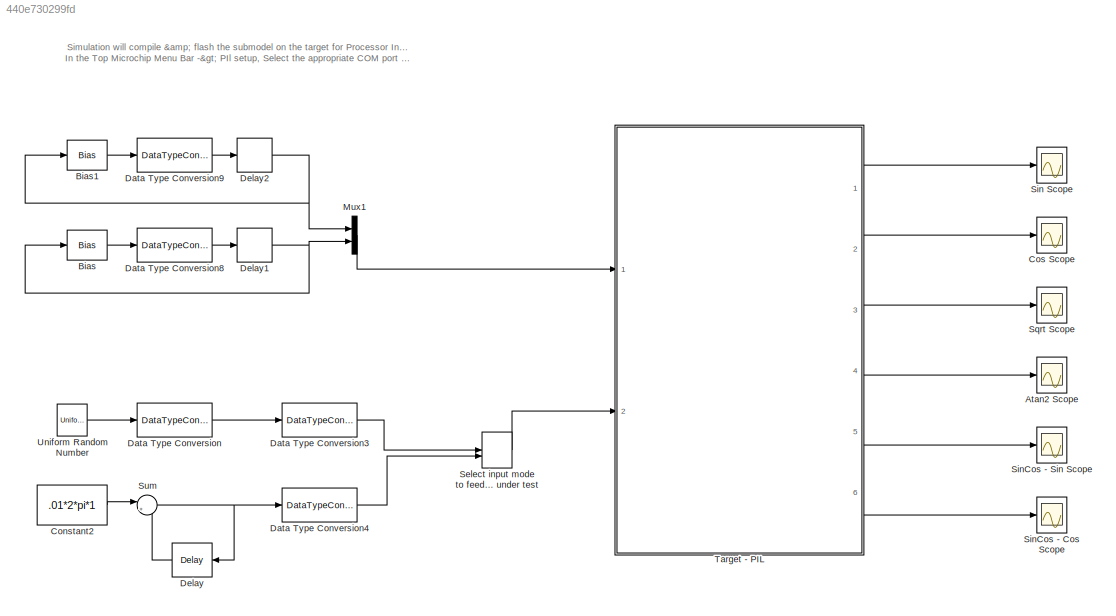
MODEL slx_440e730299fd
KIND model
CONFIG AbsTol = auto
CONFIG EnableMultiTasking = off
CONFIG FixedStep = 0.01
CONFIG MaxStep = auto
CONFIG MinStep = auto
CONFIG RelTol = 1e-3
CONFIG SampleTimeConstraint = Unconstrained
CONFIG SolverName = FixedStepDiscrete
CONFIG StartTime = 0.0
CONFIG StopTime = 66
BLOCK [Scope] Atan2 Scope
  Floating = off
  NumInputPorts = 1
  Ports = [1]
  ScopeSpecificationString = Simulink.scopes.TimeScopeBlockCfg('CurrentConfiguration', extmgr.ConfigurationSet(extmgr.Configuration('Core','General UI',true),extmgr.Configuration('Core','Source UI',true),extmgr.Configuration('Sources','WiredSimulink',true,'DataLoggingMaxPoints','300','DataLoggingVariableName','ScopeData4'),extmgr.Configuration('Visuals','Time Domain',true,'SerializedDisplays',{struct('MinYLimReal','-2.25739',...<+1529ch>
BLOCK [Bias] Bias
  Bias = 13
  SaturateOnIntegerOverflow = off
BLOCK [Bias] Bias1
  Bias = 7
  SaturateOnIntegerOverflow = off
BLOCK [Constant] Constant2
  OutDataTypeStr = fixdt(1,16,2*pi/65536,0)
  SampleTime = .01
  Value = .01*2*pi*1
BLOCK [Scope] Cos Scope
  Floating = off
  NumInputPorts = 1
  Ports = [1]
  ScopeSpecificationString = Simulink.scopes.TimeScopeBlockCfg('CurrentConfiguration', extmgr.ConfigurationSet(extmgr.Configuration('Core','General UI',true),extmgr.Configuration('Core','Source UI',true),extmgr.Configuration('Sources','WiredSimulink',true,'DataLoggingMaxPoints','300','DataLoggingVariableName','ScopeData2'),extmgr.Configuration('Visuals','Time Domain',true,'SerializedDisplays',{struct('MinYLimReal','-1.25','Ma...<+1509ch>
BLOCK [DataTypeConversion] Data Type Conversion
  ConvertRealWorld = Stored Integer (SI)
  OutDataTypeStr = uint16
  RndMeth = Floor
  SaturateOnIntegerOverflow = off
BLOCK [DataTypeConversion] Data Type Conversion3
  ConvertRealWorld = Stored Integer (SI)
  OutDataTypeStr = fixdt(1,16,13)
  RndMeth = Floor
  SaturateOnIntegerOverflow = off
BLOCK [DataTypeConversion] Data Type Conversion4
  OutDataTypeStr = fixdt(1,16,13)
  RndMeth = Floor
  SaturateOnIntegerOverflow = off
BLOCK [DataTypeConversion] Data Type Conversion8
  ConvertRealWorld = Stored Integer (SI)
  OutDataTypeStr = uint16
  RndMeth = Floor
  SaturateOnIntegerOverflow = off
BLOCK [DataTypeConversion] Data Type Conversion9
  ConvertRealWorld = Stored Integer (SI)
  OutDataTypeStr = uint16
  RndMeth = Floor
  SaturateOnIntegerOverflow = off
BLOCK [Delay] Delay
  DelayLength = 1
  InitialCondition = 0
  InputPortMap = u0
  NameLocation = top
  Ports = [1, 1]
BLOCK [Delay] Delay1
  DelayLength = 1
  InitialCondition = 0
  InputPortMap = u0
  Ports = [1, 1]
BLOCK [Delay] Delay2
  DelayLength = 1
  InitialCondition = 0
  InputPortMap = u0
  Ports = [1, 1]
BLOCK [Mux] Mux1
  DisplayOption = bar
  Inputs = 2
  Ports = [2, 1]
BLOCK [ManualSwitch] Select input mode to feed the functions under test
  CurrentSetting = 0
BLOCK [Scope] Sin Scope
  Floating = off
  NumInputPorts = 1
  Ports = [1]
  ScopeSpecificationString = Simulink.scopes.TimeScopeBlockCfg('CurrentConfiguration', extmgr.ConfigurationSet(extmgr.Configuration('Core','General UI',true),extmgr.Configuration('Core','Source UI',true),extmgr.Configuration('Sources','WiredSimulink',true,'DataLoggingMaxPoints','300','DataLoggingVariableName','ScopeData1'),extmgr.Configuration('Visuals','Time Domain',true,'SerializedDisplays',{struct('MinYLimReal','-0.09583',...<+1526ch>
BLOCK [Scope] SinCos - Cos Scope 
  Floating = off
  NumInputPorts = 1
  Ports = [1]
  ScopeSpecificationString = Simulink.scopes.TimeScopeBlockCfg('CurrentConfiguration', extmgr.ConfigurationSet(extmgr.Configuration('Core','General UI',true),extmgr.Configuration('Core','Source UI',true),extmgr.Configuration('Sources','WiredSimulink',true,'DataLoggingMaxPoints','300','DataLoggingVariableName','ScopeData6'),extmgr.Configuration('Visuals','Time Domain',true,'SerializedDisplays',{struct('MinYLimReal','-1.25013',...<+1566ch>
BLOCK [Scope] SinCos - Sin Scope
  Floating = off
  NumInputPorts = 1
  Ports = [1]
  ScopeSpecificationString = Simulink.scopes.TimeScopeBlockCfg('CurrentConfiguration', extmgr.ConfigurationSet(extmgr.Configuration('Core','General UI',true),extmgr.Configuration('Core','Source UI',true),extmgr.Configuration('Sources','WiredSimulink',true,'DataLoggingMaxPoints','300','DataLoggingVariableName','ScopeData5'),extmgr.Configuration('Visuals','Time Domain',true,'SerializedDisplays',{struct('MinYLimReal','-0.12294',...<+1589ch>
BLOCK [Scope] Sqrt Scope
  Floating = off
  NumInputPorts = 1
  Ports = [1]
  ScopeSpecificationString = Simulink.scopes.TimeScopeBlockCfg('CurrentConfiguration', extmgr.ConfigurationSet(extmgr.Configuration('Core','General UI',true),extmgr.Configuration('Core','Source UI',true),extmgr.Configuration('Sources','WiredSimulink',true,'DataLoggingMaxPoints','300','DataLoggingVariableName','ScopeData3'),extmgr.Configuration('Visuals','Time Domain',true,'SerializedDisplays',{struct('MinYLimReal','-0.125','M...<+1542ch>
BLOCK [Sum] Sum
  AccumDataTypeStr = Inherit: Same as first input
  Inputs = |++
  OutDataTypeStr = Inherit: Same as first input
  Ports = [2, 1]
BLOCK [ModelReference] Target - PIL
  ModelNameDialog = PIL_SubModel_dsPIC33CK_Curiosity.slx
  ModelReferenceVersion = 7.11
  Ports = [2, 6]
BLOCK [UniformRandomNumber] Uniform Random Number
  Maximum = 2^16-1
  Minimum = 0
  SampleTime = .01
ANNOTATION (root): Simulation will compile & flash the submodel on the target for Processor In the Loop test (PIL). In the Top Microchip Menu Bar -> PIl setup, Select the appropriate COM port appearing when the board is connected (USB)
LINE Bias1:1 -> Data Type Conversion9:1
LINE Bias:1 -> Data Type Conversion8:1
LINE Constant2:1 -> Sum:1
LINE Data Type Conversion3:1 -> Select input mode to feed the functions under test:1
LINE Data Type Conversion4:1 -> Select input mode to feed the functions under test:2
LINE Data Type Conversion8:1 -> Delay1:1
LINE Data Type Conversion9:1 -> Delay2:1
LINE Data Type Conversion:1 -> Data Type Conversion3:1
NET Delay1:1 -> Bias:1, Mux1:2
NET Delay2:1 -> Bias1:1, Mux1:1
LINE Delay:1 -> Sum:2
LINE Mux1:1 -> Target - PIL:1
LINE Select input mode to feed the functions under test:1 -> Target - PIL:2
NET Sum:1 -> Data Type Conversion4:1, Delay:1
LINE Target - PIL:1 -> Sin Scope:1
LINE Target - PIL:2 -> Cos Scope:1
LINE Target - PIL:3 -> Sqrt Scope:1
LINE Target - PIL:4 -> Atan2 Scope:1
LINE Target - PIL:5 -> SinCos - Sin Scope:1
LINE Target - PIL:6 -> SinCos - Cos Scope :1
LINE Uniform Random Number:1 -> Data Type Conversion:1
note: NET lines group one-source signal fan-out (src -> all destinations, sorted); 1:1 wires keep LINE
